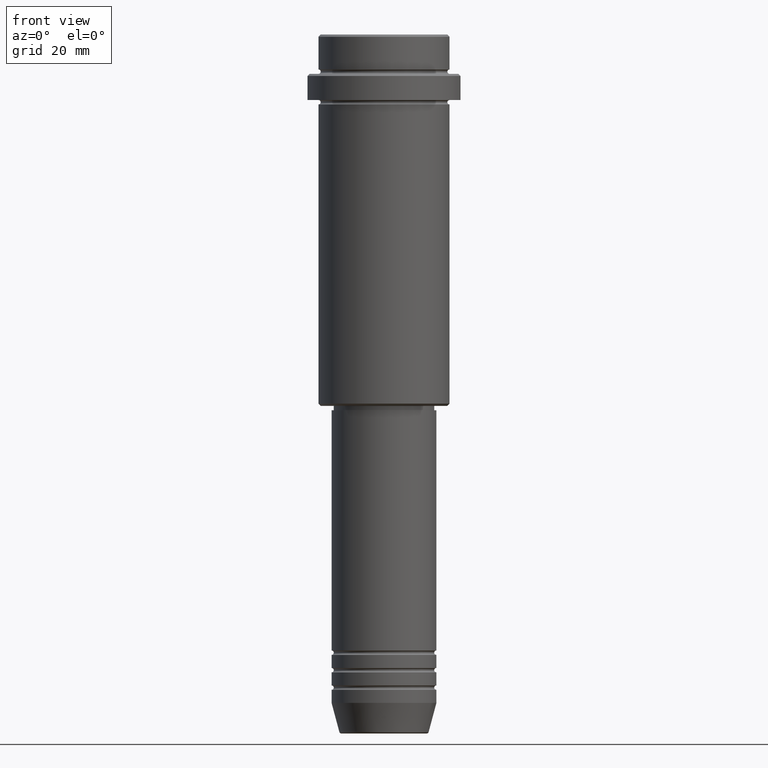
[diagram: clean part render]
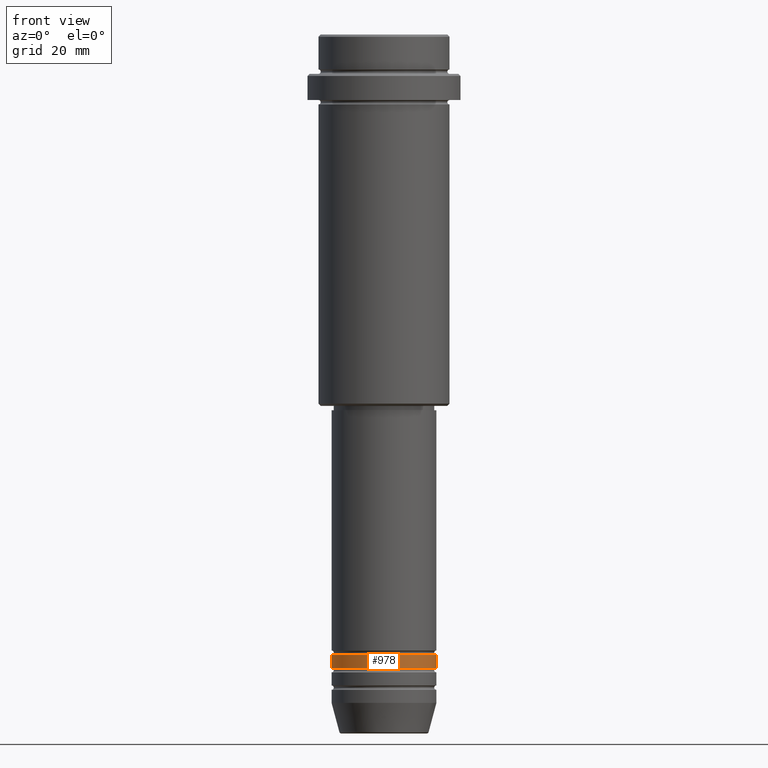
[diagram: same view with one face highlighted and labeled with its STEP entity id]
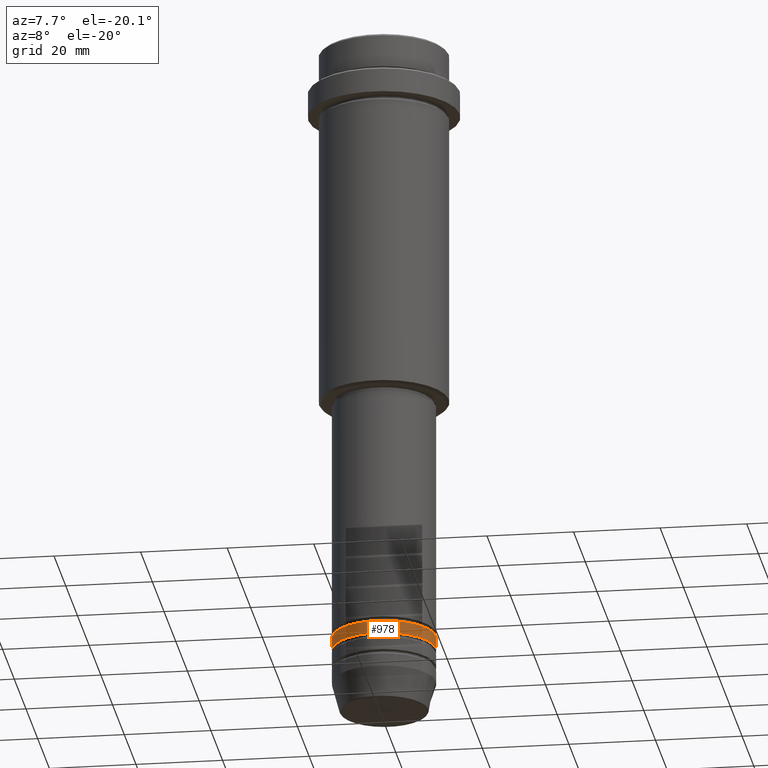
[diagram: same view with one face highlighted and labeled with its STEP entity id]
A machine part, front view. The second image highlights one B-rep face of the part: STEP entity #978.
A second angle (auxiliary view) of the same face is appended — the face is thin or edge-on in the first view.
In plain terms, the highlighted cylindrical surface (partial cylindrical patch) has radius 12 mm, axis along (-0, -0, 1).
Its self-contained STEP definition (entity closure, byte-faithful):
#20 = CARTESIAN_POINT ( 'NONE',  ( -12.00000000000000000, 1.469576158976823947E-15, -144.9999999999999147 ) ) ;
#54 = CARTESIAN_POINT ( 'NONE',  ( 0.000000000000000000, 0.000000000000000000, 0.000000000000000000 ) ) ;
#67 = VECTOR ( 'NONE', #921, 1000.000000000000000 ) ;
#68 = CYLINDRICAL_SURFACE ( 'NONE', #1224, 12.00000000000000000 ) ;
#80 = FACE_OUTER_BOUND ( 'NONE', #925, .T. ) ;
#207 = EDGE_CURVE ( 'NONE', #372, #277, #1285, .T. ) ;
#277 = VERTEX_POINT ( 'NONE', #313 ) ;
#287 = VERTEX_POINT ( 'NONE', #1187 ) ;
#313 = CARTESIAN_POINT ( 'NONE',  ( -12.00000000000000000, 1.469576158976823947E-15, -141.9999999999999147 ) ) ;
#372 = VERTEX_POINT ( 'NONE', #20 ) ;
#396 = LINE ( 'NONE', #827, #67 ) ;
#499 = DIRECTION ( 'NONE',  ( 1.000000000000000000, 0.000000000000000000, 0.000000000000000000 ) ) ;
#561 = AXIS2_PLACEMENT_3D ( 'NONE', #819, #1240, #1254 ) ;
#591 = ORIENTED_EDGE ( 'NONE', *, *, #207, .F. ) ;
#664 = ORIENTED_EDGE ( 'NONE', *, *, #1341, .F. ) ;
#810 = CARTESIAN_POINT ( 'NONE',  ( 0.000000000000000000, 0.000000000000000000, -144.9999999999999147 ) ) ;
#819 = CARTESIAN_POINT ( 'NONE',  ( 0.000000000000000000, 0.000000000000000000, -141.9999999999999147 ) ) ;
#823 = DIRECTION ( 'NONE',  ( 1.000000000000000000, 0.000000000000000000, 0.000000000000000000 ) ) ;
#827 = CARTESIAN_POINT ( 'NONE',  ( 12.00000000000000000, 0.000000000000000000, 0.000000000000000000 ) ) ;
#875 = CARTESIAN_POINT ( 'NONE',  ( -12.00000000000000000, 1.469576158976823947E-15, 0.000000000000000000 ) ) ;
#910 = AXIS2_PLACEMENT_3D ( 'NONE', #810, #1373, #823 ) ;
#921 = DIRECTION ( 'NONE',  ( -0.000000000000000000, -0.000000000000000000, 1.000000000000000000 ) ) ;
#925 = EDGE_LOOP ( 'NONE', ( #591, #1138, #1133, #664 ) ) ;
#978 = ADVANCED_FACE ( 'NONE', ( #80 ), #68, .T. ) ;
#1021 = CIRCLE ( 'NONE', #561, 12.00000000000000000 ) ;
#1025 = EDGE_CURVE ( 'NONE', #287, #1130, #396, .T. ) ;
#1130 = VERTEX_POINT ( 'NONE', #1184 ) ;
#1133 = ORIENTED_EDGE ( 'NONE', *, *, #1025, .T. ) ;
#1138 = ORIENTED_EDGE ( 'NONE', *, *, #1369, .T. ) ;
#1176 = DIRECTION ( 'NONE',  ( -0.000000000000000000, -0.000000000000000000, 1.000000000000000000 ) ) ;
#1184 = CARTESIAN_POINT ( 'NONE',  ( 12.00000000000000000, 0.000000000000000000, -141.9999999999999147 ) ) ;
#1187 = CARTESIAN_POINT ( 'NONE',  ( 12.00000000000000000, 0.000000000000000000, -144.9999999999999147 ) ) ;
#1192 = CIRCLE ( 'NONE', #910, 12.00000000000000000 ) ;
#1224 = AXIS2_PLACEMENT_3D ( 'NONE', #54, #1270, #499 ) ;
#1240 = DIRECTION ( 'NONE',  ( -0.000000000000000000, -0.000000000000000000, 1.000000000000000000 ) ) ;
#1254 = DIRECTION ( 'NONE',  ( 1.000000000000000000, 0.000000000000000000, 0.000000000000000000 ) ) ;
#1270 = DIRECTION ( 'NONE',  ( -0.000000000000000000, -0.000000000000000000, 1.000000000000000000 ) ) ;
#1285 = LINE ( 'NONE', #875, #1370 ) ;
#1341 = EDGE_CURVE ( 'NONE', #277, #1130, #1021, .T. ) ;
#1369 = EDGE_CURVE ( 'NONE', #372, #287, #1192, .T. ) ;
#1370 = VECTOR ( 'NONE', #1176, 1000.000000000000000 ) ;
#1373 = DIRECTION ( 'NONE',  ( -0.000000000000000000, -0.000000000000000000, 1.000000000000000000 ) ) ;